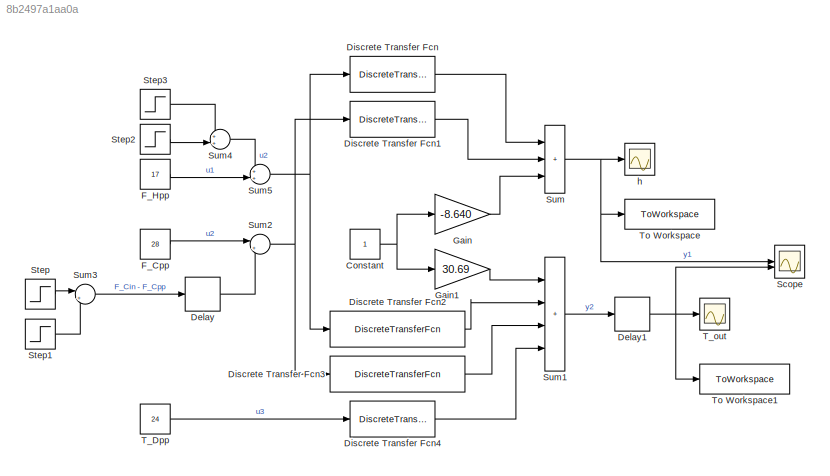
MODEL slx_8b2497a1aa0a
KIND model
CONFIG AbsTol = auto
CONFIG EnableMultiTasking = off
CONFIG FixedStep = 10
CONFIG MaxStep = auto
CONFIG MinStep = auto
CONFIG RelTol = 1e-3
CONFIG SampleTimeConstraint = Unconstrained
CONFIG SolverName = FixedStepDiscrete
CONFIG StartTime = 0.0
CONFIG StopTime = 5000
BLOCK [Constant] Constant
BLOCK [Delay] Delay
  DelayLength = 9
  InputPortMap = u0
BLOCK [Delay] Delay1
  DelayLength = 4
  InitialCondition = 36.83333333
  InputPortMap = u0
BLOCK [DiscreteTransferFcn] Discrete Transfer Fcn
  Denominator = [1 -0.9334]
  InputPortMap = u0
  Numerator = [0.03196]
BLOCK [DiscreteTransferFcn] Discrete Transfer Fcn1
  Denominator = [1 -0.9334]
  InputPortMap = u0
  Numerator = [0.03196]
BLOCK [DiscreteTransferFcn] Discrete Transfer Fcn2
  Denominator = [1 -1.595 0.6173]
  InputPortMap = u0
  Numerator = [0.2268 -0.2117]
BLOCK [DiscreteTransferFcn] Discrete Transfer Fcn3
  Denominator = [1 -1.595 0.6173]
  InputPortMap = u0
  Numerator = [-0.1118 0.1044]
BLOCK [DiscreteTransferFcn] Discrete Transfer Fcn4
  Denominator = [1 -0.6614]
  InputPortMap = u0
  Numerator = [0.05644]
BLOCK [Constant] F_Cpp
  Value = 28
BLOCK [Constant] F_Hpp
  Value = 17
BLOCK [Gain] Gain
  Gain = -8.640
BLOCK [Gain] Gain1
  Gain = 30.69
BLOCK [Scope] Scope
  Floating = off
  NumInputPorts = 2
  ScopeSpecificationString = Simulink.scopes.TimeScopeBlockCfg('CurrentConfiguration', extmgr.ConfigurationSet(extmgr.Configuration('Core','General UI',true),extmgr.Configuration('Core','Source UI',true),extmgr.Configuration('Sources','WiredSimulink',true,'DataLoggingVariableName','ScopeData1'),extmgr.Configuration('Visuals','Time Domain',true,'SerializedDisplays',{struct('MinYLimReal','-14.47759','MaxYLimReal','43.8983','YLa...<+1403ch>
BLOCK [Step] Step
  After = 2.8
  SampleTime = 0
  Time = 2000
BLOCK [Step] Step1
  After = -5.6
  SampleTime = 0
  Time = 2500
BLOCK [Step] Step2
  After = -3.4
  SampleTime = 0
  Time = 1500
BLOCK [Step] Step3
  After = 1.7
  SampleTime = 0
  Time = 1000
BLOCK [Sum] Sum
  IconShape = rectangular
  Inputs = +++
BLOCK [Sum] Sum1
  IconShape = rectangular
  Inputs = ++++
BLOCK [Sum] Sum2
  Inputs = |++
BLOCK [Sum] Sum3
  Inputs = |++
BLOCK [Sum] Sum4
  Inputs = ++|
BLOCK [Sum] Sum5
  Inputs = ++|
BLOCK [Constant] T_Dpp
  Value = 24
BLOCK [Scope] T_out
  Floating = off
  NumInputPorts = 1
  ScopeSpecificationString = Simulink.scopes.TimeScopeBlockCfg('CurrentConfiguration', extmgr.ConfigurationSet(extmgr.Configuration('Core','General UI',true),extmgr.Configuration('Core','Source UI',true),extmgr.Configuration('Sources','WiredSimulink',true,'DataLoggingVariableName','ScopeData2'),extmgr.Configuration('Visuals','Time Domain',true,'SerializedDisplays',{struct('MinYLimReal','29.76866','MaxYLimReal','38.98205','YLa...<+1720ch>
BLOCK [ToWorkspace] To Workspace
  FixptAsFi = on
  MaxDataPoints = inf
  SampleTime = -1
  SaveFormat = Timeseries
  VariableName = h
BLOCK [ToWorkspace] To Workspace1
  FixptAsFi = on
  MaxDataPoints = inf
  SampleTime = -1
  SaveFormat = Timeseries
  VariableName = T_out
BLOCK [Scope] h
  Floating = off
  NumInputPorts = 1
  ScopeSpecificationString = Simulink.scopes.TimeScopeBlockCfg('CurrentConfiguration', extmgr.ConfigurationSet(extmgr.Configuration('Core','General UI',true),extmgr.Configuration('Core','Source UI',true),extmgr.Configuration('Sources','WiredSimulink',true),extmgr.Configuration('Visuals','Time Domain',true,'SerializedDisplays',{struct('MinYLimReal','-11.43796','MaxYLimReal','16.54165','YLabelReal','','MinYLimMag','0.00000','Ma...<+1658ch>
NET Constant:1 -> Gain1:1, Gain:1
NET Delay1:1 -> Scope:2, T_out:1, To Workspace1:1
LINE Delay:1 -> Sum2:2
LINE Discrete Transfer Fcn1:1 -> Sum:2
LINE Discrete Transfer Fcn2:1 -> Sum1:2
LINE Discrete Transfer Fcn3:1 -> Sum1:3
LINE Discrete Transfer Fcn4:1 -> Sum1:4
LINE Discrete Transfer Fcn:1 -> Sum:1
LINE F_Cpp:1 -> Sum2:1
LINE F_Hpp:1 -> Sum5:2
LINE Gain1:1 -> Sum1:1
LINE Gain:1 -> Sum:3
LINE Step1:1 -> Sum3:2
LINE Step2:1 -> Sum4:2
LINE Step3:1 -> Sum4:1
LINE Step:1 -> Sum3:1
LINE Sum1:1 -> Delay1:1
NET Sum2:1 -> Discrete Transfer Fcn1:1, Discrete Transfer Fcn3:1
LINE Sum3:1 -> Delay:1
LINE Sum4:1 -> Sum5:1
NET Sum5:1 -> Discrete Transfer Fcn2:1, Discrete Transfer Fcn:1
NET Sum:1 -> Scope:1, To Workspace:1, h:1
LINE T_Dpp:1 -> Discrete Transfer Fcn4:1
note: NET lines group one-source signal fan-out (src -> all destinations, sorted); 1:1 wires keep LINE
